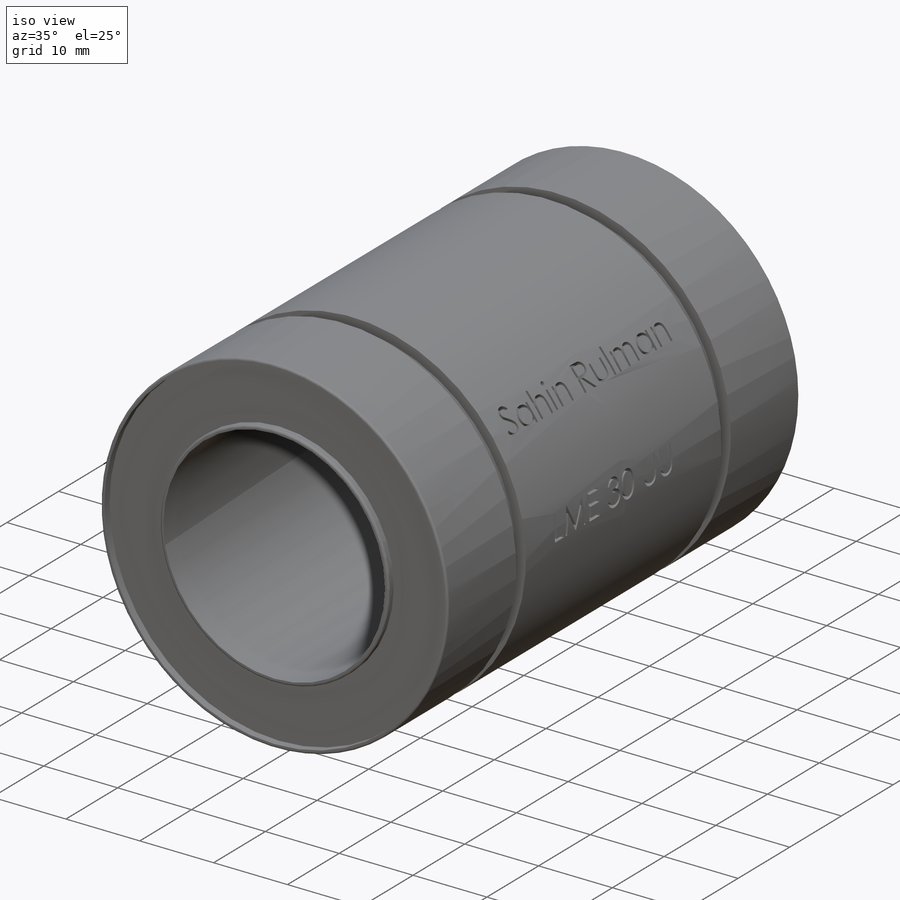
[diagram: iso view]
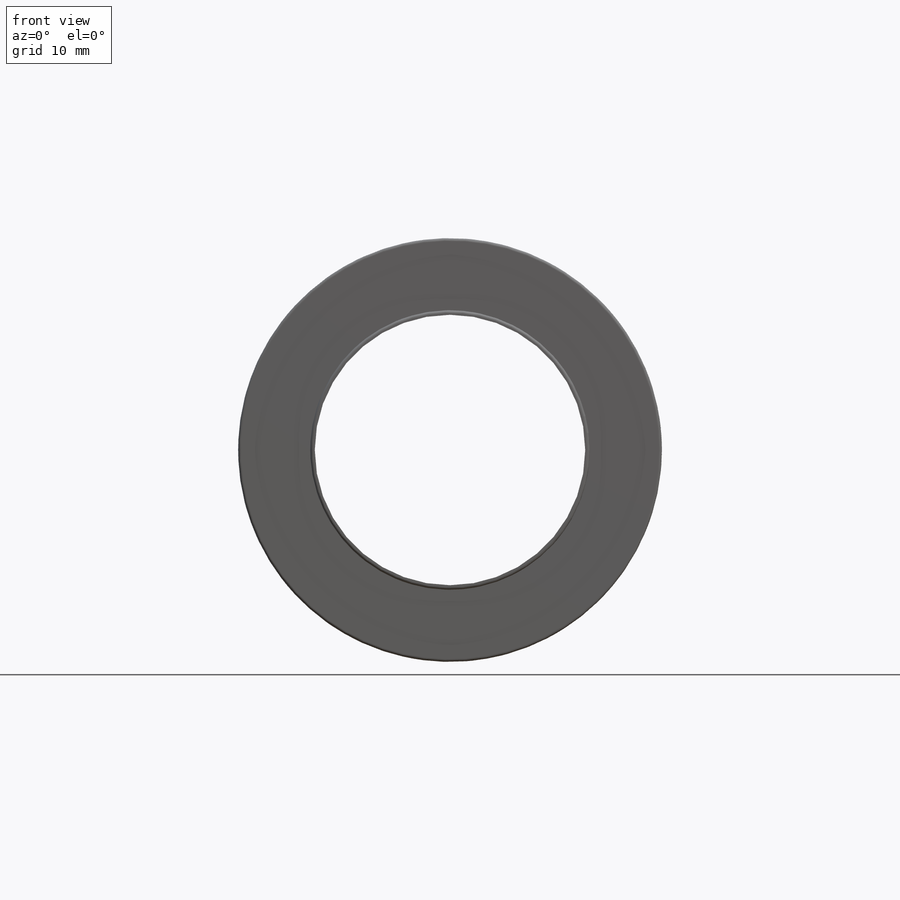
[diagram: front view]
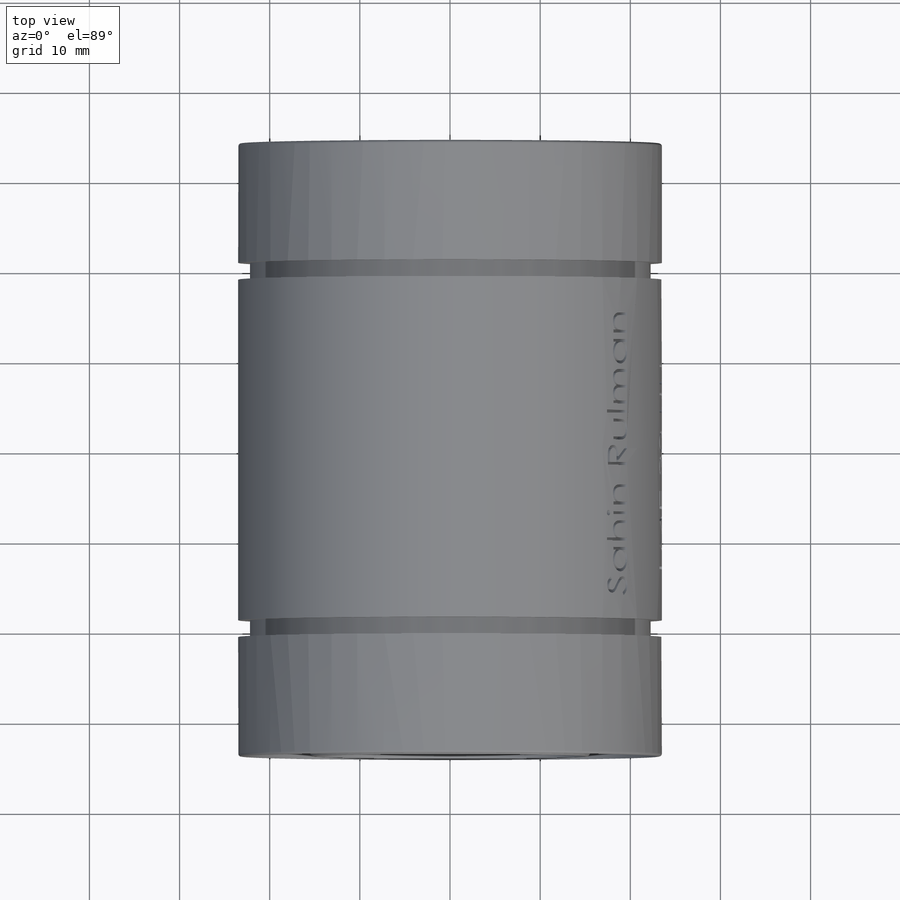
[diagram: top view]
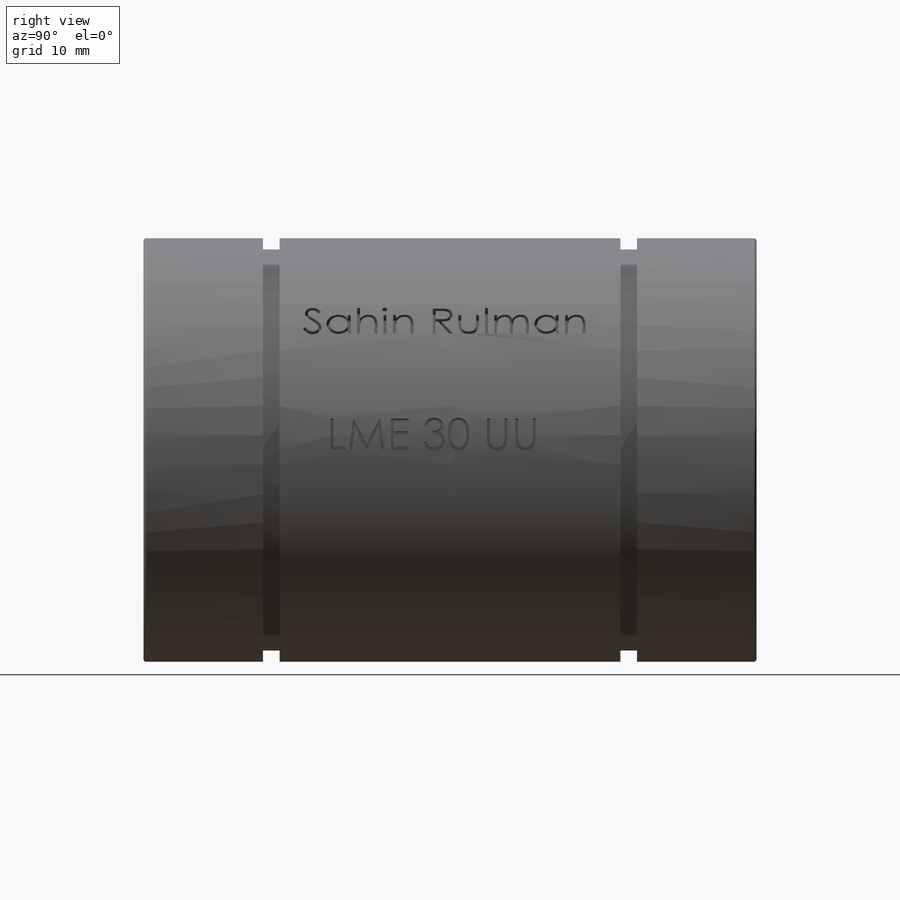
[diagram: right view]
SOLIDWORKS PART (.sldprt)
format: sldprt  version: not decoded by parser v0  size: 1,060,864 bytes
history: native  units: mm
features: sketch x4, material x1, extrude x1, cut_revolve x1, plane x1, cut_extrude x1, mirror x1, fillet x1 (+11 scaffold rows collapsed)
feature tree (22):
  scaffold x11  (default folders/planes/origin — collapsed)
  material  "Material <not specified>"
  sketch  "Sketch1"  dims[D1=47.0mm D2=30.0mm]
  extrude  "Boss-Extrude1"  Depth=68mm
  sketch  "Sketch2"  dims[D1=22.25mm D2=20.75mm D3=1.85mm]
  cut_revolve  "Cut-Revolve1"  Angle=360deg
  plane  "Plane1"  Offset=23.5mm
  sketch  "Sketch3"  dims[D1=1.0mm]
  sketch  "Sketch4"  dims[D1=~22.835175mm]
  cut_extrude  "Cut-Extrude1"  Depth=1mm
  mirror  "Mirror1"
  fillet  "Fillet1"  Radius=0.3mm
decode coverage: 8 of 9 modeling features carry decoded parameters
note: ~ marks probable driven/reference dimensions
note: suppression state not decoded; provenance and decode notes live in map.json
